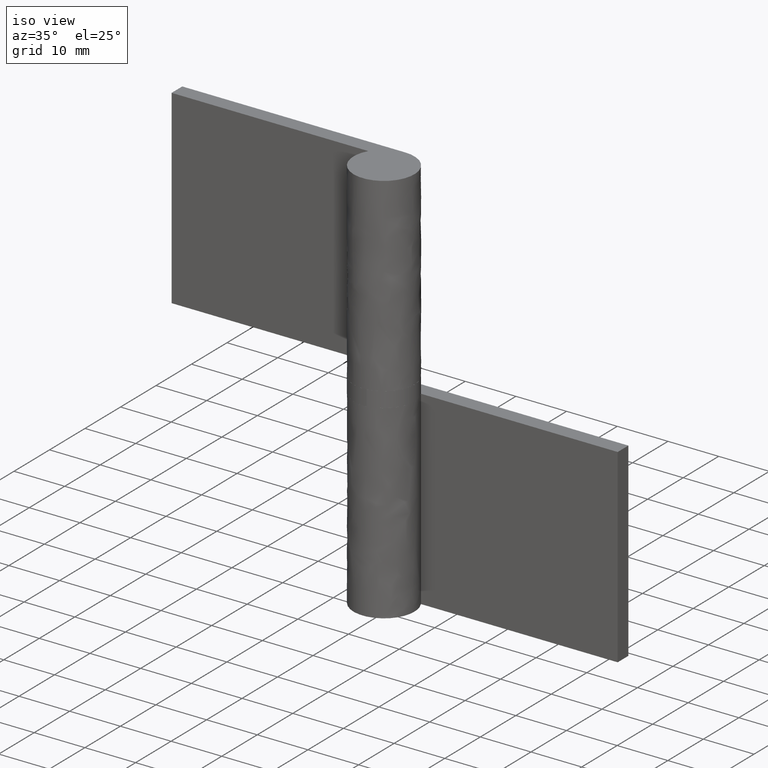
[diagram: clean part render]
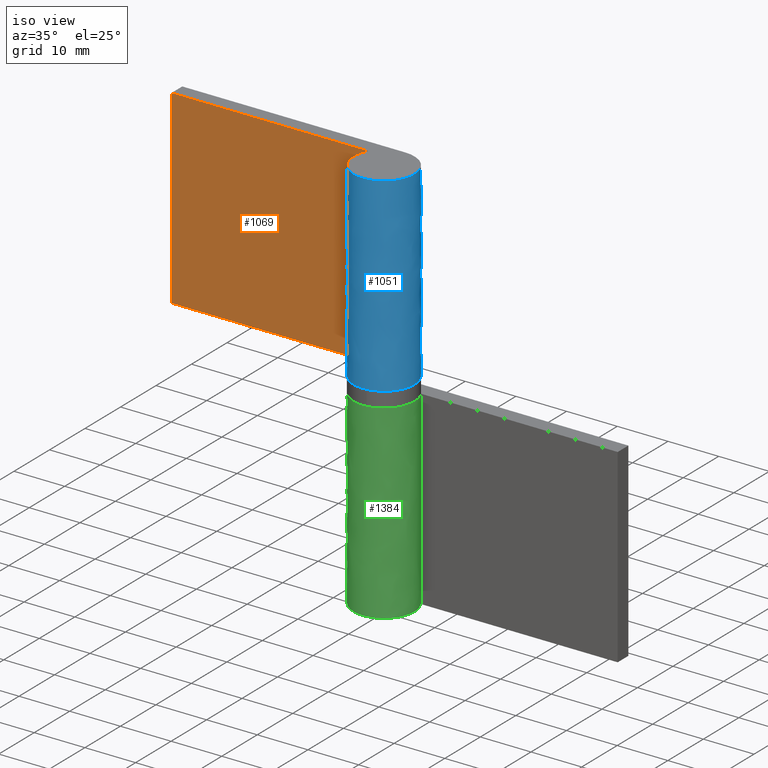
[diagram: same view with three faces highlighted in distinct colors, each labeled with its STEP entity id]
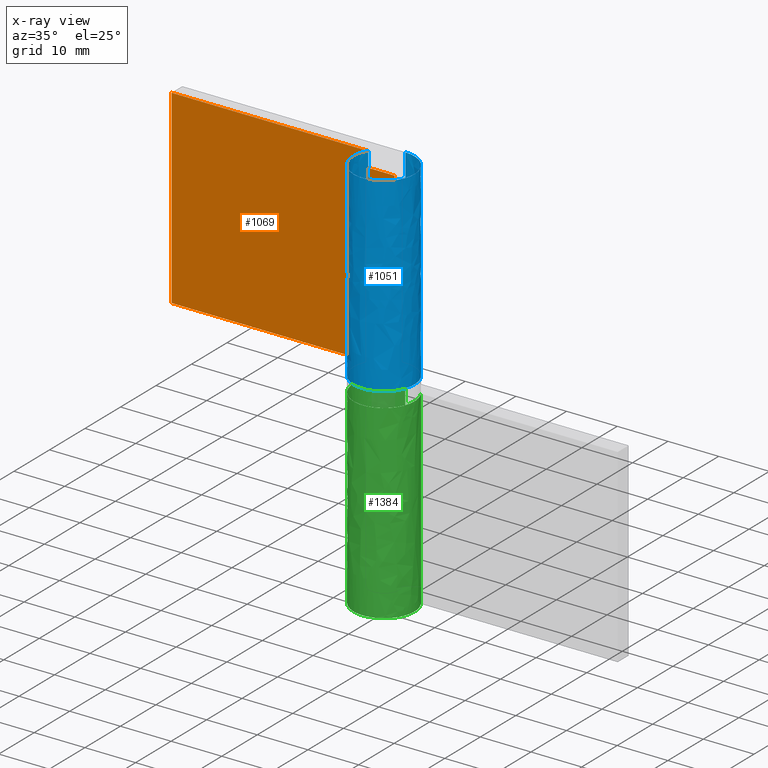
[diagram: x-ray of the same camera — body ghosted, the three highlighted faces saturated]
A machine part, iso view with three faces highlighted in distinct colors.
The next image is the same camera in x-ray (body ghosted, the three faces saturated) — at least one of them is partly hidden behind the body in this view.
Their STEP definitions:

[orange] entity #1069 — the highlighted face is a freeform B-spline surface patch.
#796=CARTESIAN_POINT('',(1.836910E-016,3.000000000000055,75.0));
#797=VERTEX_POINT('',#796);
#798=CARTESIAN_POINT('',(-5.196152422706600,3.000000000000055,75.0));
#799=VERTEX_POINT('',#798);
#800=CARTESIAN_POINT('',(1.836910E-016,3.000000000000055,75.0));
#801=CARTESIAN_POINT('',(-5.196152422706600,3.000000000000055,75.0));
#802=QUASI_UNIFORM_CURVE('',1,(#800,#801),.UNSPECIFIED.,.F.,.U.);
#803=EDGE_CURVE('',#797,#799,#802,.T.);
#854=CARTESIAN_POINT('',(-44.0,3.000000000000055,78.0));
#855=VERTEX_POINT('',#854);
#856=CARTESIAN_POINT('',(-5.196152422706600,3.000000000000060,78.0));
#857=VERTEX_POINT('',#856);
#858=CARTESIAN_POINT('',(-44.0,3.000000000000055,78.0));
#859=CARTESIAN_POINT('',(-5.196152422706600,3.000000000000060,78.0));
#860=QUASI_UNIFORM_CURVE('',1,(#858,#859),.UNSPECIFIED.,.F.,.U.);
#861=EDGE_CURVE('',#855,#857,#860,.T.);
#904=CARTESIAN_POINT('',(-44.0,3.000000000000055,40.500000000000000));
#905=VERTEX_POINT('',#904);
#906=CARTESIAN_POINT('',(1.836910E-016,3.000000000000055,40.500000000000000));
#907=VERTEX_POINT('',#906);
#908=CARTESIAN_POINT('',(-44.0,3.000000000000055,40.500000000000000));
#909=CARTESIAN_POINT('',(1.836910E-016,3.000000000000055,40.500000000000000));
#910=QUASI_UNIFORM_CURVE('',1,(#908,#909),.UNSPECIFIED.,.F.,.U.);
#911=EDGE_CURVE('',#905,#907,#910,.T.);
#989=CARTESIAN_POINT('',(-44.0,3.000000000000055,40.500000000000000));
#990=CARTESIAN_POINT('',(-44.0,3.000000000000055,78.0));
#991=QUASI_UNIFORM_CURVE('',1,(#989,#990),.UNSPECIFIED.,.F.,.U.);
#992=EDGE_CURVE('',#905,#855,#991,.T.);
#1036=CARTESIAN_POINT('',(-5.196152422706600,3.000000000000060,78.0));
#1037=CARTESIAN_POINT('',(-5.196152422706600,3.000000000000055,75.0));
#1038=QUASI_UNIFORM_CURVE('',1,(#1036,#1037),.UNSPECIFIED.,.F.,.U.);
#1039=EDGE_CURVE('',#857,#799,#1038,.T.);
#1052=CARTESIAN_POINT('',(-46.197799914719468,3.000000000000055,79.873124927317718));
#1053=CARTESIAN_POINT('',(-46.197799914719468,3.000000000000055,38.626874066853901));
#1054=CARTESIAN_POINT('',(2.197801094891430,3.000000000000055,79.873124927317718));
#1055=CARTESIAN_POINT('',(2.197801094891430,3.000000000000055,38.626874066853901));
#1056=B_SPLINE_SURFACE_WITH_KNOTS('',1,1,((#1052,#1054),(#1053,#1055)),.UNSPECIFIED.,.F.,.F.,.U.,(2,2),(2,2),(0.0,41.246250860463817),(0.0,48.395601009610900),.UNSPECIFIED.);
#1057=ORIENTED_EDGE('',*,*,#1039,.F.);
#1058=ORIENTED_EDGE('',*,*,#861,.F.);
#1059=ORIENTED_EDGE('',*,*,#992,.F.);
#1060=ORIENTED_EDGE('',*,*,#911,.T.);
#1061=CARTESIAN_POINT('',(1.836910E-016,3.000000000000055,40.500000000000000));
#1062=CARTESIAN_POINT('',(1.836910E-016,3.000000000000055,75.0));
#1063=QUASI_UNIFORM_CURVE('',1,(#1061,#1062),.UNSPECIFIED.,.F.,.U.);
#1064=EDGE_CURVE('',#907,#797,#1063,.T.);
#1065=ORIENTED_EDGE('',*,*,#1064,.T.);
#1066=ORIENTED_EDGE('',*,*,#803,.T.);
#1067=EDGE_LOOP('',(#1057,#1058,#1059,#1060,#1065,#1066));
#1068=FACE_OUTER_BOUND('',#1067,.T.);
#1069=ADVANCED_FACE('',(#1068),#1056,.T.);

[blue] entity #1051 — the highlighted face is a freeform B-spline surface patch.
#798=CARTESIAN_POINT('',(-5.196152422706600,3.000000000000055,75.0));
#799=VERTEX_POINT('',#798);
#826=CARTESIAN_POINT('',(-5.224700948379691,2.950000000000060,75.0));
#827=VERTEX_POINT('',#826);
#833=CARTESIAN_POINT('',(-5.196152422706601,3.000000000000055,75.0));
#834=CARTESIAN_POINT('',(-5.210546637331649,2.975068488934422,75.0));
#835=CARTESIAN_POINT('',(-5.224700948379692,2.950000000000059,75.0));
#843=(BOUNDED_CURVE()B_SPLINE_CURVE(2,(#833,#834,#835),.UNSPECIFIED.,.F.,.U.)CURVE()GEOMETRIC_REPRESENTATION_ITEM()QUASI_UNIFORM_CURVE()RATIONAL_B_SPLINE_CURVE((1.0,0.999988489453482,1.0))REPRESENTATION_ITEM(''));
#844=EDGE_CURVE('',#799,#827,#843,.T.);
#856=CARTESIAN_POINT('',(-5.196152422706600,3.000000000000060,78.0));
#857=VERTEX_POINT('',#856);
#863=CARTESIAN_POINT('',(3.673819E-016,6.0,78.0));
#864=VERTEX_POINT('',#863);
#865=CARTESIAN_POINT('',(-5.196152422706596,3.000000000000063,78.0));
#866=CARTESIAN_POINT('',(-7.498133386643532,-0.987147987594978,78.0));
#867=CARTESIAN_POINT('',(-4.242640687119324,-4.242640687119246,78.0));
#868=CARTESIAN_POINT('',(-0.987147987595116,-7.498133386643515,78.0));
#869=CARTESIAN_POINT('',(2.999999999999968,-5.196152422706651,78.0));
#870=CARTESIAN_POINT('',(6.987147987595055,-2.894171458769786,78.0));
#871=CARTESIAN_POINT('',(5.795554957734413,1.552914270615110,78.0));
#872=CARTESIAN_POINT('',(4.603961927873773,6.0,78.0));
#873=CARTESIAN_POINT('',(0.0,6.0,78.0));
#881=(BOUNDED_CURVE()B_SPLINE_CURVE(2,(#865,#866,#867,#868,#869,#870,#871,#872,#873),.UNSPECIFIED.,.F.,.U.)B_SPLINE_CURVE_WITH_KNOTS((3,2,2,2,3),(0.0,0.250000000000000,0.500000000000000,0.750000000000000,1.0),.UNSPECIFIED.)CURVE()GEOMETRIC_REPRESENTATION_ITEM()RATIONAL_B_SPLINE_CURVE((1.0,0.793353340291234,1.0,0.793353340291234,1.0,0.793353340291234,1.0,0.793353340291234,1.0))REPRESENTATION_ITEM(''));
#882=EDGE_CURVE('',#857,#864,#881,.T.);
#920=CARTESIAN_POINT('',(3.673819E-016,6.0,40.500000000000000));
#921=VERTEX_POINT('',#920);
#927=CARTESIAN_POINT('',(-5.224700948379691,2.950000000000055,40.500000000000000));
#928=VERTEX_POINT('',#927);
#929=CARTESIAN_POINT('',(-5.224700948379692,2.950000000000060,40.500000000000000));
#930=CARTESIAN_POINT('',(-7.482698713737891,-1.049106124103661,40.499999999999993));
#931=CARTESIAN_POINT('',(-4.211996565981467,-4.273065050775652,40.500000000000000));
#932=CARTESIAN_POINT('',(-0.941294418225046,-7.497023977447642,40.499999999999993));
#933=CARTESIAN_POINT('',(3.024896692450802,-5.181698563212665,40.500000000000000));
#934=CARTESIAN_POINT('',(6.991087803126656,-2.866373148977686,40.499999999999993));
#935=CARTESIAN_POINT('',(5.791812815486874,1.566813425511160,40.500000000000000));
#936=CARTESIAN_POINT('',(4.592537827847093,6.0,40.499999999999993));
#937=CARTESIAN_POINT('',(0.0,6.0,40.500000000000000));
#945=(BOUNDED_CURVE()B_SPLINE_CURVE(2,(#929,#930,#931,#932,#933,#934,#935,#936,#937),.UNSPECIFIED.,.F.,.U.)B_SPLINE_CURVE_WITH_KNOTS((3,2,2,2,3),(0.0,0.250000000000000,0.500000000000000,0.750000000000000,1.0),.UNSPECIFIED.)CURVE()GEOMETRIC_REPRESENTATION_ITEM()RATIONAL_B_SPLINE_CURVE((1.0,0.794082983987986,1.0,0.794082983987986,1.0,0.794082983987986,1.0,0.794082983987986,1.0))REPRESENTATION_ITEM(''));
#946=EDGE_CURVE('',#928,#921,#945,.T.);
#1003=CARTESIAN_POINT('',(3.673819E-016,6.0,40.500000000000000));
#1004=CARTESIAN_POINT('',(3.673819E-016,6.0,78.0));
#1005=QUASI_UNIFORM_CURVE('',1,(#1003,#1004),.UNSPECIFIED.,.F.,.U.);
#1006=EDGE_CURVE('',#921,#864,#1005,.T.);
#1013=CARTESIAN_POINT('',(-0.214610261753827,5.996160641239520,39.562500000000000));
#1014=CARTESIAN_POINT('',(-0.214610261753827,5.996160641239520,78.960937500000014));
#1015=CARTESIAN_POINT('',(7.190031464240245,6.261182243242564,39.562500000000007));
#1016=CARTESIAN_POINT('',(7.190031464240245,6.261182243242564,78.960937500000014));
#1017=CARTESIAN_POINT('',(5.909750127230993,-1.036751384707648,39.562500000000000));
#1018=CARTESIAN_POINT('',(5.909750127230993,-1.036751384707648,78.960937500000014));
#1019=CARTESIAN_POINT('',(4.629468790221742,-8.334685012657859,39.562500000000007));
#1020=CARTESIAN_POINT('',(4.629468790221742,-8.334685012657859,78.960937500000014));
#1021=CARTESIAN_POINT('',(-2.242802020772299,-5.565055174535077,39.562500000000000));
#1022=CARTESIAN_POINT('',(-2.242802020772299,-5.565055174535077,78.960937500000014));
#1023=CARTESIAN_POINT('',(-9.115072831766339,-2.795425336412298,39.562500000000007));
#1024=CARTESIAN_POINT('',(-9.115072831766339,-2.795425336412298,78.960937500000014));
#1025=CARTESIAN_POINT('',(-4.977140606614480,3.350831446371063,39.562500000000000));
#1026=CARTESIAN_POINT('',(-4.977140606614480,3.350831446371063,78.960937500000014));
#1034=(BOUNDED_SURFACE()B_SPLINE_SURFACE(1,2,((#1013,#1015,#1017,#1019,#1021,#1023,#1025),(#1014,#1016,#1018,#1020,#1022,#1024,#1026)),.UNSPECIFIED.,.F.,.F.,.U.)B_SPLINE_SURFACE_WITH_KNOTS((2,2),(3,2,2,3),(0.0,39.398437500000021),(0.0,11.447412784755841,22.894825569511681,34.342238354267522),.UNSPECIFIED.)GEOMETRIC_REPRESENTATION_ITEM()RATIONAL_B_SPLINE_SURFACE(((1.0,0.629320391049838,1.0,0.629320391049838,1.0,0.629320391049838,1.0),(1.0,0.629320391049838,1.0,0.629320391049838,1.0,0.629320391049838,1.0)))REPRESENTATION_ITEM('')SURFACE());
#1035=ORIENTED_EDGE('',*,*,#882,.F.);
#1036=CARTESIAN_POINT('',(-5.196152422706600,3.000000000000060,78.0));
#1037=CARTESIAN_POINT('',(-5.196152422706600,3.000000000000055,75.0));
#1038=QUASI_UNIFORM_CURVE('',1,(#1036,#1037),.UNSPECIFIED.,.F.,.U.);
#1039=EDGE_CURVE('',#857,#799,#1038,.T.);
#1040=ORIENTED_EDGE('',*,*,#1039,.T.);
#1041=ORIENTED_EDGE('',*,*,#844,.T.);
#1042=CARTESIAN_POINT('',(-5.224700948379691,2.950000000000055,40.500000000000000));
#1043=CARTESIAN_POINT('',(-5.224700948379691,2.950000000000060,75.0));
#1044=QUASI_UNIFORM_CURVE('',1,(#1042,#1043),.UNSPECIFIED.,.F.,.U.);
#1045=EDGE_CURVE('',#928,#827,#1044,.T.);
#1046=ORIENTED_EDGE('',*,*,#1045,.F.);
#1047=ORIENTED_EDGE('',*,*,#946,.T.);
#1048=ORIENTED_EDGE('',*,*,#1006,.T.);
#1049=EDGE_LOOP('',(#1035,#1040,#1041,#1046,#1047,#1048));
#1050=FACE_OUTER_BOUND('',#1049,.T.);
#1051=ADVANCED_FACE('',(#1050),#1034,.T.);

[green] entity #1384 — the highlighted face is a freeform B-spline surface patch.
#1163=CARTESIAN_POINT('',(5.196144422706640,3.0,3.0));
#1164=VERTEX_POINT('',#1163);
#1191=CARTESIAN_POINT('',(5.224692948379730,2.950000000000000,3.0));
#1192=VERTEX_POINT('',#1191);
#1198=CARTESIAN_POINT('',(5.196144422706639,3.0,3.0));
#1199=CARTESIAN_POINT('',(5.210538637331730,2.975068488934288,3.000000000000000));
#1200=CARTESIAN_POINT('',(5.224692948379731,2.950000000000001,3.0));
#1208=(BOUNDED_CURVE()B_SPLINE_CURVE(2,(#1198,#1199,#1200),.UNSPECIFIED.,.F.,.U.)CURVE()GEOMETRIC_REPRESENTATION_ITEM()QUASI_UNIFORM_CURVE()RATIONAL_B_SPLINE_CURVE((1.0,0.999988489453483,1.0))REPRESENTATION_ITEM(''));
#1209=EDGE_CURVE('',#1164,#1192,#1208,.T.);
#1221=CARTESIAN_POINT('',(5.196144422706640,3.0,0.0));
#1222=VERTEX_POINT('',#1221);
#1228=CARTESIAN_POINT('',(-0.000007999999995,6.0,0.0));
#1229=VERTEX_POINT('',#1228);
#1230=CARTESIAN_POINT('',(5.196144422706639,2.999999999999998,0.0));
#1231=CARTESIAN_POINT('',(7.498125386643519,-0.987147987595061,0.0));
#1232=CARTESIAN_POINT('',(4.242632687119289,-4.242640687119287,0.0));
#1233=CARTESIAN_POINT('',(0.987139987595058,-7.498133386643516,0.0));
#1234=CARTESIAN_POINT('',(-3.000007999999999,-5.196152422706630,0.0));
#1235=CARTESIAN_POINT('',(-6.987155987595047,-2.894171458769748,0.0));
#1236=CARTESIAN_POINT('',(-5.795562957734405,1.552914270615121,0.0));
#1237=CARTESIAN_POINT('',(-4.603969927873760,6.0,0.0));
#1238=CARTESIAN_POINT('',(-0.000007999999994,6.0,0.0));
#1246=(BOUNDED_CURVE()B_SPLINE_CURVE(2,(#1230,#1231,#1232,#1233,#1234,#1235,#1236,#1237,#1238),.UNSPECIFIED.,.F.,.U.)B_SPLINE_CURVE_WITH_KNOTS((3,2,2,2,3),(0.0,0.250000000000000,0.500000000000000,0.750000000000000,1.0),.UNSPECIFIED.)CURVE()GEOMETRIC_REPRESENTATION_ITEM()RATIONAL_B_SPLINE_CURVE((1.0,0.793353340291235,1.0,0.793353340291235,1.0,0.793353340291235,1.0,0.793353340291235,1.0))REPRESENTATION_ITEM(''));
#1247=EDGE_CURVE('',#1222,#1229,#1246,.T.);
#1269=CARTESIAN_POINT('',(-0.000007999999995,6.0,37.500000000000000));
#1270=VERTEX_POINT('',#1269);
#1278=CARTESIAN_POINT('',(5.224692948379730,2.950000000000000,37.500000000000000));
#1279=VERTEX_POINT('',#1278);
#1280=CARTESIAN_POINT('',(5.224692948379732,2.949999999999999,37.500000000000000));
#1281=CARTESIAN_POINT('',(7.482690713737880,-1.049106124103736,37.500000000000000));
#1282=CARTESIAN_POINT('',(4.211988565981436,-4.273065050775689,37.500000000000000));
#1283=CARTESIAN_POINT('',(0.941286418224992,-7.497023977447647,37.500000000000000));
#1284=CARTESIAN_POINT('',(-3.024904692450833,-5.181698563212644,37.500000000000000));
#1285=CARTESIAN_POINT('',(-6.991095803126648,-2.866373148977649,37.500000000000000));
#1286=CARTESIAN_POINT('',(-5.791820815486865,1.566813425511171,37.500000000000000));
#1287=CARTESIAN_POINT('',(-4.592545827847078,5.999999999999999,37.500000000000000));
#1288=CARTESIAN_POINT('',(-0.000007999999994,6.0,37.500000000000000));
#1296=(BOUNDED_CURVE()B_SPLINE_CURVE(2,(#1280,#1281,#1282,#1283,#1284,#1285,#1286,#1287,#1288),.UNSPECIFIED.,.F.,.U.)B_SPLINE_CURVE_WITH_KNOTS((3,2,2,2,3),(0.0,0.250000000000000,0.500000000000000,0.750000000000000,1.0),.UNSPECIFIED.)CURVE()GEOMETRIC_REPRESENTATION_ITEM()RATIONAL_B_SPLINE_CURVE((1.0,0.794082983987986,1.0,0.794082983987986,1.0,0.794082983987986,1.0,0.794082983987986,1.0))REPRESENTATION_ITEM(''));
#1297=EDGE_CURVE('',#1279,#1270,#1296,.T.);
#1342=CARTESIAN_POINT('',(0.214602261753897,5.996160641239517,38.437500000000007));
#1343=CARTESIAN_POINT('',(0.214602261753897,5.996160641239517,-0.960937500000000));
#1344=CARTESIAN_POINT('',(-7.190039464240172,6.261182243242640,38.437500000000007));
#1345=CARTESIAN_POINT('',(-7.190039464240172,6.261182243242640,-0.960937500000000));
#1346=CARTESIAN_POINT('',(-5.909758127230998,-1.036751384707585,38.437500000000007));
#1347=CARTESIAN_POINT('',(-5.909758127230998,-1.036751384707585,-0.960937500000000));
#1348=CARTESIAN_POINT('',(-4.629476790221826,-8.334685012657809,38.437500000000007));
#1349=CARTESIAN_POINT('',(-4.629476790221826,-8.334685012657809,-0.960937500000000));
#1350=CARTESIAN_POINT('',(2.242794020772246,-5.565055174535102,38.437500000000007));
#1351=CARTESIAN_POINT('',(2.242794020772246,-5.565055174535102,-0.960937500000000));
#1352=CARTESIAN_POINT('',(9.115064831766317,-2.795425336412396,38.437500000000007));
#1353=CARTESIAN_POINT('',(9.115064831766317,-2.795425336412396,-0.960937500000000));
#1354=CARTESIAN_POINT('',(4.977132606614522,3.350831446371009,38.437500000000007));
#1355=CARTESIAN_POINT('',(4.977132606614522,3.350831446371009,-0.960937500000000));
#1363=(BOUNDED_SURFACE()B_SPLINE_SURFACE(1,2,((#1342,#1344,#1346,#1348,#1350,#1352,#1354),(#1343,#1345,#1347,#1349,#1351,#1353,#1355)),.UNSPECIFIED.,.F.,.F.,.U.)B_SPLINE_SURFACE_WITH_KNOTS((2,2),(3,2,2,3),(0.0,39.398437500000007),(0.0,11.447412784755841,22.894825569511681,34.342238354267522),.UNSPECIFIED.)GEOMETRIC_REPRESENTATION_ITEM()RATIONAL_B_SPLINE_SURFACE(((1.0,0.629320391049838,1.0,0.629320391049838,1.0,0.629320391049838,1.0),(1.0,0.629320391049838,1.0,0.629320391049838,1.0,0.629320391049838,1.0)))REPRESENTATION_ITEM('')SURFACE());
#1364=ORIENTED_EDGE('',*,*,#1247,.F.);
#1365=CARTESIAN_POINT('',(5.196144422706640,3.0,0.0));
#1366=CARTESIAN_POINT('',(5.196144422706640,3.0,3.0));
#1367=QUASI_UNIFORM_CURVE('',1,(#1365,#1366),.UNSPECIFIED.,.F.,.U.);
#1368=EDGE_CURVE('',#1222,#1164,#1367,.T.);
#1369=ORIENTED_EDGE('',*,*,#1368,.T.);
#1370=ORIENTED_EDGE('',*,*,#1209,.T.);
#1371=CARTESIAN_POINT('',(5.224692948379730,2.950000000000000,37.500000000000000));
#1372=CARTESIAN_POINT('',(5.224692948379730,2.950000000000000,3.0));
#1373=QUASI_UNIFORM_CURVE('',1,(#1371,#1372),.UNSPECIFIED.,.F.,.U.);
#1374=EDGE_CURVE('',#1279,#1192,#1373,.T.);
#1375=ORIENTED_EDGE('',*,*,#1374,.F.);
#1376=ORIENTED_EDGE('',*,*,#1297,.T.);
#1377=CARTESIAN_POINT('',(-0.000007999999995,6.0,37.500000000000000));
#1378=CARTESIAN_POINT('',(-0.000007999999995,6.0,0.0));
#1379=QUASI_UNIFORM_CURVE('',1,(#1377,#1378),.UNSPECIFIED.,.F.,.U.);
#1380=EDGE_CURVE('',#1270,#1229,#1379,.T.);
#1381=ORIENTED_EDGE('',*,*,#1380,.T.);
#1382=EDGE_LOOP('',(#1364,#1369,#1370,#1375,#1376,#1381));
#1383=FACE_OUTER_BOUND('',#1382,.T.);
#1384=ADVANCED_FACE('',(#1383),#1363,.T.);